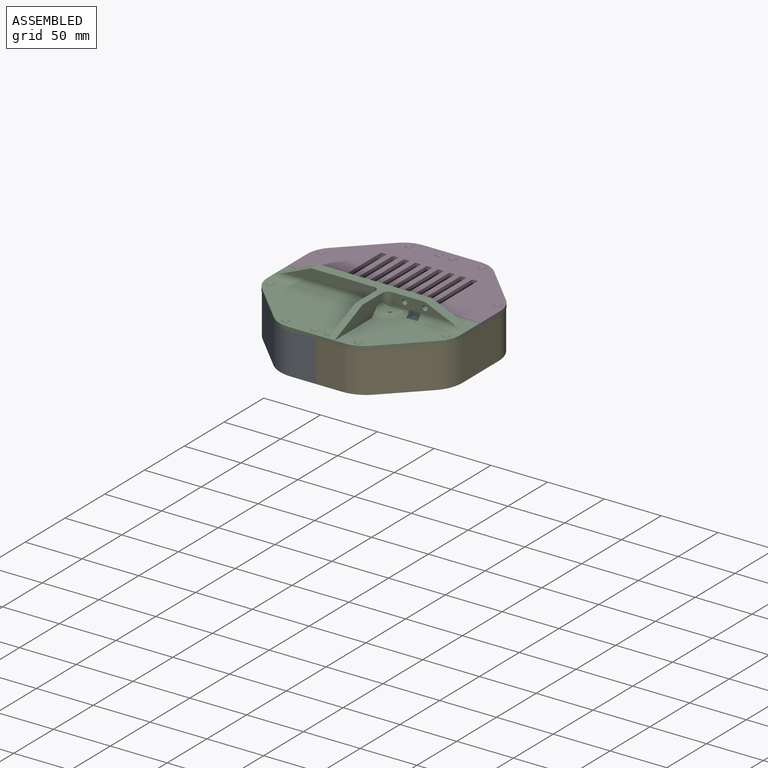
[diagram: assembled view]
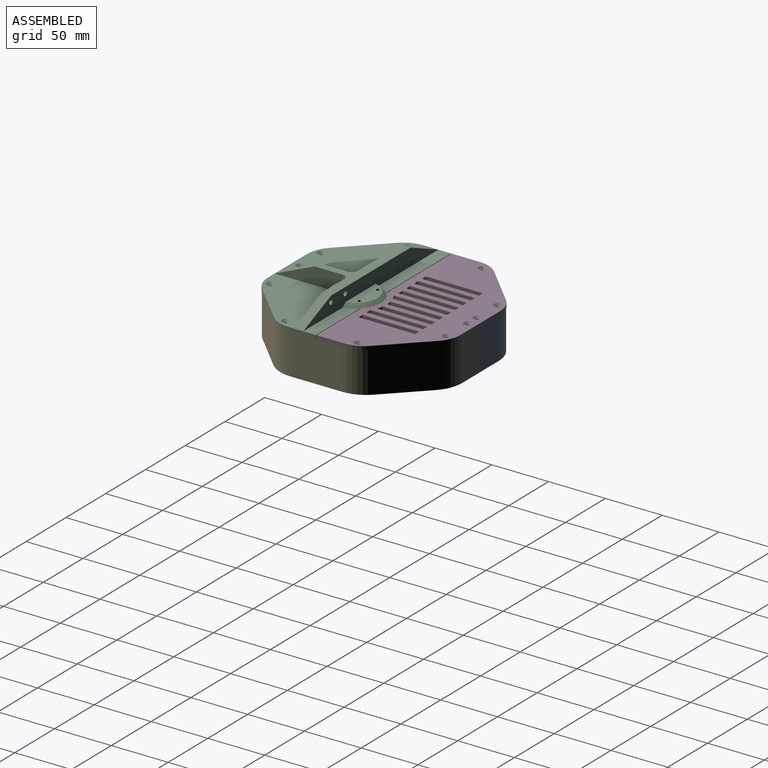
[diagram: assembled view, second angle]
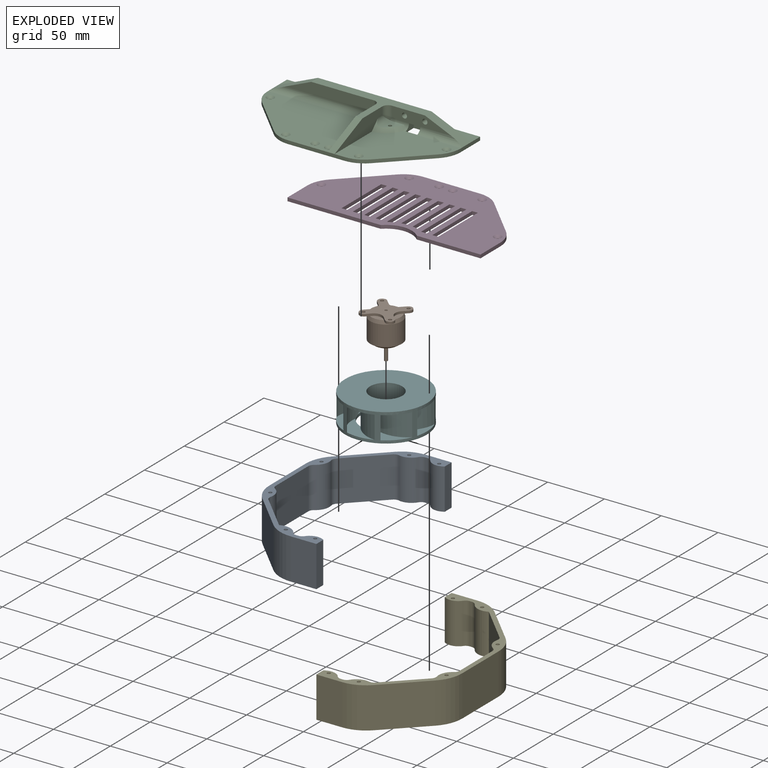
[diagram: exploded view]
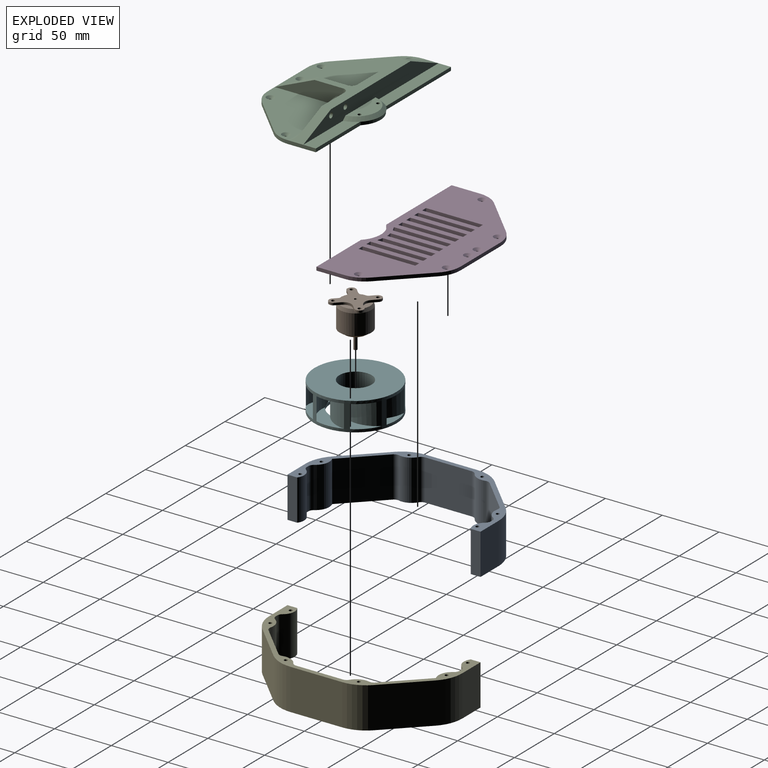
[diagram: exploded view, second angle]
ASSEMBLY  parts=6 mates=6
PART A: 39 faces, bbox 85x170x36 mm
  f0: plane 36x8.62mm, normal (-1,0,0), area 310.2mm2, adj f1,f22,f24,f25
  f1: cylinder r=10.5mm len=36mm, axis (0,0,-1), area 589.5mm2, adj f0,f24,f25,f30
  f2: plane 36x1.93mm, normal (0,-1,0), area 69.4mm2, adj f24,f25,f30,f32
  f3: cylinder r=12.2mm len=36mm, axis (0,0,-1), area 646.5mm2, adj f4,f24,f25,f32
  f4: plane 36x31.27mm, normal (-0.71,-0.71,0), area 1592.1mm2, adj f3,f24,f25,f33
  f5: cylinder r=12.2mm len=36mm, axis (0,0,-1), area 551.4mm2, adj f24,f25,f33,f34
  f6: plane 41.09x36mm, normal (-1,0,0), area 1479.4mm2, adj f24,f25,f34,f35
  f7: cylinder r=12.2mm len=36mm, axis (0,0,-1), area 551.4mm2, adj f24,f25,f35,f36
  f8: plane 36x29.06mm, normal (-0.71,0.71,0), area 1479.4mm2, adj f24,f25,f31,f36
  f9: cylinder r=12.2mm len=36mm, axis (0,0,-1), area 551.4mm2, adj f24,f25,f31,f37
  f10: plane 36x1.93mm, normal (0,1,0), area 69.4mm2, adj f24,f25,f37,f38
  f11: cylinder r=10.5mm len=36mm, axis (0,0,-1), area 589.5mm2, adj f12,f24,f25,f38
  f12: plane 36x8.62mm, normal (-1,0,0), area 310.2mm2, adj f11,f13,f24,f25
  f13: plane 36x22.78mm, normal (0,-1,0), area 820.1mm2, adj f12,f24,f25,f26
  f14: plane 36x32.22mm, normal (0.71,-0.71,0), area 1640.3mm2, adj f24,f25,f26,f27
  f15: plane 45.56x36mm, normal (1,0,0), area 1640.3mm2, adj f24,f25,f27,f28
  f16: plane 36x32.22mm, normal (0.71,0.71,0), area 1640.3mm2, adj f24,f25,f28,f29
  f17: cylinder r=1.5mm len=36mm, axis (0,0,-1), area 339.3mm2, adj f24,f25
  f18: cylinder r=1.5mm len=36mm, axis (0,0,-1), area 339.3mm2, adj f24,f25
  f19: cylinder r=1.5mm len=36mm, axis (0,0,-1), area 339.3mm2, adj f24,f25
  f20: cylinder r=1.5mm len=36mm, axis (0,0,-1), area 339.3mm2, adj f24,f25
  f21: cylinder r=1.5mm len=36mm, axis (0,0,-1), area 339.3mm2, adj f24,f25
  f22: plane 36x22.78mm, normal (0,1,0), area 820.1mm2, adj f0,f24,f25,f29
  f23: cylinder r=1.5mm len=36mm, axis (0,0,-1), area 339.3mm2, adj f24,f25
  f24: plane 170x85mm, normal (0,0,1), area 1500.2mm2, adj f0,f1,f2,f3,f4,f5,f6,f7
  f25: plane 170x85mm, normal (0,0,-1), area 1500.2mm2, adj f0,f1,f2,f3,f4,f5,f6,f7
  f26: cylinder r=30mm len=36mm, axis (0,0,-1), area 848.2mm2, adj f13,f14,f24,f25
  f27: cylinder r=30mm len=36mm, axis (0,0,-1), area 848.2mm2, adj f14,f15,f24,f25
  f28: cylinder r=30mm len=36mm, axis (0,0,-1), area 848.2mm2, adj f15,f16,f24,f25
  f29: cylinder r=30mm len=36mm, axis (0,0,-1), area 848.2mm2, adj f16,f22,f24,f25
  f30: cylinder r=5mm len=36mm, axis (0,0,-1), area 171.2mm2, adj f1,f2,f24,f25
  f31: cylinder r=5mm len=36mm, axis (0,0,-1), area 183.6mm2, adj f8,f9,f24,f25
  f32: cylinder r=5mm len=36mm, axis (0,0,-1), area 183.6mm2, adj f2,f3,f24,f25
  f33: cylinder r=5mm len=36mm, axis (0,0,-1), area 183.6mm2, adj f4,f5,f24,f25
  f34: cylinder r=5mm len=36mm, axis (0,0,-1), area 183.6mm2, adj f5,f6,f24,f25
  f35: cylinder r=5mm len=36mm, axis (0,0,-1), area 183.6mm2, adj f6,f7,f24,f25
  f36: cylinder r=5mm len=36mm, axis (0,0,-1), area 183.6mm2, adj f7,f8,f24,f25
  f37: cylinder r=5mm len=36mm, axis (0,0,-1), area 183.6mm2, adj f9,f10,f24,f25
  f38: cylinder r=5mm len=36mm, axis (0,0,-1), area 171.2mm2, adj f10,f11,f24,f25
PART B: 39 faces, bbox 40x40x40 mm
  f0: plane 7.55x7.5mm, normal (0,0,1), area 40.8mm2, adj f12,f15,f16,f28,f38
  f1: plane 7.55x7.5mm, normal (0,0,1), area 40.8mm2, adj f12,f19,f22,f27,f37
  f2: plane 7.55x7.5mm, normal (0,0,1), area 40.8mm2, adj f12,f20,f21,f25,f36
  f3: plane 7.55x7.5mm, normal (0,0,1), area 40.8mm2, adj f12,f14,f17,f24,f35
  f4: plane 40x40mm, normal (0,0,-1), area 529.2mm2, adj f14,f15,f16,f17,f19,f20,f21,f22
  f5: plane 3x3mm, normal (0,0,1), area 7.1mm2, adj f6
  f6: cylinder r=1.5mm len=12mm, axis (0,0,-1), area 113.1mm2, adj f5,f7
  f7: plane 9x9mm, normal (0,0,1), area 56.5mm2, adj f6,f8
  f8: cylinder r=4.5mm len=9mm, axis (0,0,-1), area 56.5mm2, adj f7,f9
  f9: plane 19x19mm, normal (0,0,1), area 219.9mm2, adj f8,f10
  f10: cone r=9.5mm half-angle=56.3deg, axis (0,0,-1), area 399.3mm2, adj f9,f11
  f11: cylinder r=14mm len=28mm, axis (0,0,-1), area 1583.4mm2, adj f10,f12
  f12: cone r=14mm half-angle=18.4deg, axis (0,0,1), area 268.2mm2, adj f0,f1,f2,f3,f11,f13,f18,f23
  f13: plane 8.7x8.7mm, normal (0,0,-1), area 40.1mm2, adj f12,f16,f17,f32
  f14: cylinder r=3.75mm len=7.5mm, axis (0,0,-1), area 23.6mm2, adj f3,f4,f17,f24
  f15: cylinder r=3.75mm len=7.5mm, axis (0,0,-1), area 23.6mm2, adj f0,f4,f16,f28
  f16: plane 5.5x2mm, normal (1,0,0), area 11mm2, adj f0,f4,f13,f15,f32
  f17: plane 5.5x2mm, normal (0,-1,0), area 11mm2, adj f3,f4,f13,f14,f32
  f18: plane 8.7x8.7mm, normal (0,0,-1), area 40.1mm2, adj f12,f21,f22,f30
  f19: cylinder r=3.75mm len=7.5mm, axis (0,0,-1), area 23.6mm2, adj f1,f4,f22,f27
  f20: cylinder r=3.75mm len=7.5mm, axis (0,0,-1), area 23.6mm2, adj f2,f4,f21,f25
  f21: plane 5.5x2mm, normal (-1,0,0), area 11mm2, adj f2,f4,f18,f20,f30
  f22: plane 5.5x2mm, normal (0,1,0), area 11mm2, adj f1,f4,f18,f19,f30
  f23: plane 8.7x8.7mm, normal (0,0,-1), area 40.1mm2, adj f12,f24,f25,f31
  f24: plane 5.5x2mm, normal (0,1,0), area 11mm2, adj f3,f4,f14,f23,f31
  f25: plane 5.5x2mm, normal (1,0,0), area 11mm2, adj f2,f4,f20,f23,f31
  f26: plane 8.7x8.7mm, normal (0,0,-1), area 40.1mm2, adj f12,f27,f28,f29
  f27: plane 5.5x2mm, normal (0,-1,0), area 11mm2, adj f1,f4,f19,f26,f29
  f28: plane 5.5x2mm, normal (-1,0,0), area 11mm2, adj f0,f4,f15,f26,f29
  f29: cylinder r=7mm len=7mm, axis (0,0,-1), area 22mm2, adj f4,f26,f27,f28
  f30: cylinder r=7mm len=7mm, axis (0,0,1), area 22mm2, adj f4,f18,f21,f22
  f31: cylinder r=7mm len=7mm, axis (0,0,1), area 22mm2, adj f4,f23,f24,f25
  f32: cylinder r=7mm len=7mm, axis (0,0,-1), area 22mm2, adj f4,f13,f16,f17
  f33: cylinder r=1.16mm len=2.32mm, axis (0,0,-1), area 14.6mm2, adj f4,f34
  f34: plane 2.32x2.32mm, normal (0,0,-1), area 4.2mm2, adj f33
  f35: cylinder r=1.5mm len=3mm, axis (0,0,-1), area 18.8mm2, adj f3,f4
  f36: cylinder r=1.5mm len=3mm, axis (0,0,-1), area 18.8mm2, adj f2,f4
  f37: cylinder r=1.5mm len=3mm, axis (0,0,-1), area 18.8mm2, adj f1,f4
  f38: cylinder r=1.5mm len=3mm, axis (0,0,-1), area 18.8mm2, adj f0,f4
PART C: 66 faces, bbox 170x91.5x18 mm
  f0: plane 24.35x3mm, normal (-1,0,0), area 73.1mm2, adj f1,f7,f24,f32,f65
  f1: plane 170x91mm, normal (0,0,-1), area 11475.2mm2, adj f0,f2,f9,f10,f11,f12,f13,f14
  f2: plane 10x8mm, normal (1,0,0), area 51.3mm2, adj f1,f3,f51,f54,f55,f58,f59
  f3: plane 10x6mm, normal (0,-1,0), area 60mm2, adj f2,f53,f55,f59
  f4: plane 60x15mm, normal (1,0,0), area 563.5mm2, adj f8,f28,f34,f39,f49,f50
  f5: plane 78.33x10mm, normal (0,-1,0), area 666.7mm2, adj f28,f32,f47,f52
  f6: plane 55.69x11.1mm, normal (0,0,1), area 578.8mm2, adj f17,f29,f38,f63
  f7: plane 81.69x11.1mm, normal (0,0,1), area 867.4mm2, adj f0,f29,f38,f65
  f8: plane 69x60mm, normal (0,0,1), area 2636.2mm2, adj f4,f10,f11,f26,f27,f39,f41,f42
  f9: plane 35.15x35.15mm, normal (-0.71,-0.71,0), area 149.1mm2, adj f1,f19,f24,f25
  f10: plane 49.71x3mm, normal (0,-1,0), area 149.1mm2, adj f1,f8,f19,f25,f26,f34
  f11: plane 35.15x35.15mm, normal (0.71,-0.71,0), area 149.1mm2, adj f1,f8,f26,f27
  f12: cylinder r=1.5mm len=3mm, axis (0,0,-1), area 9.4mm2, adj f1,f45
  f13: cylinder r=1.5mm len=3mm, axis (0,0,-1), area 9.4mm2, adj f1,f42
  f14: cylinder r=1.5mm len=3mm, axis (0,0,-1), area 9.4mm2, adj f1,f41
  f15: cylinder r=1.5mm len=3mm, axis (0,0,-1), area 9.4mm2, adj f1,f43
  f16: cylinder r=1.5mm len=3mm, axis (0,0,-1), area 9.4mm2, adj f1,f44
  f17: plane 24.35x3mm, normal (1,0,0), area 73.1mm2, adj f1,f6,f27,f33,f63
  f18: cylinder r=1.5mm len=3mm, axis (0,0,-1), area 9.4mm2, adj f1,f46
  f19: plane 95x60mm, normal (0,0,1), area 4119.2mm2, adj f9,f10,f24,f25,f31,f40,f43,f44
  f20: cylinder r=1.5mm len=6mm, axis (0,0,1), area 56.5mm2, adj f1,f35
  f21: cylinder r=1.5mm len=6mm, axis (0,0,1), area 56.5mm2, adj f1,f37
  f22: cylinder r=1.5mm len=6mm, axis (0,0,1), area 56.5mm2, adj f1,f35
  f23: cylinder r=1.5mm len=6mm, axis (0,0,1), area 56.5mm2, adj f1,f36
  f24: cylinder r=25mm len=17.68mm, axis (0,0,-1), area 58.9mm2, adj f0,f1,f9,f19,f32,f52
  f25: cylinder r=25mm len=17.68mm, axis (0,0,-1), area 58.9mm2, adj f1,f9,f10,f19
  f26: cylinder r=25mm len=17.68mm, axis (0,0,-1), area 58.9mm2, adj f1,f8,f10,f11
  f27: cylinder r=25mm len=17.68mm, axis (0,0,-1), area 58.9mm2, adj f1,f8,f11,f17,f33,f51
  f28: plane 100x38.4mm, normal (0,0,1), area 1030.7mm2, adj f4,f5,f29,f30,f31,f32,f33,f34
  f29: plane 170.05x15.05mm, normal (0,1,0), area 1870mm2, adj f6,f7,f28,f32,f33,f35,f38,f60
  f30: plane 52.33x10mm, normal (0,-1,0), area 374.9mm2, adj f28,f33,f49,f51,f55,f60,f61
  f31: plane 60x15mm, normal (-1,0,0), area 563.5mm2, adj f19,f28,f34,f40,f47,f48
  f32: plane 35x15mm, normal (-0.39,0,0.92), area 333.5mm2, adj f0,f5,f24,f28,f29,f52
  f33: plane 35x15mm, normal (0.39,0,0.92), area 333.5mm2, adj f17,f27,f28,f29,f30,f51
  f34: plane 35x15mm, normal (0,-0.39,0.92), area 228.5mm2, adj f4,f10,f28,f31
  f35: plane 37.99x15.1mm, normal (0,0,1), area 413mm2, adj f20,f22,f29,f38
  f36: plane 13.37x10.99mm, normal (0,0,1), area 90mm2, adj f23,f40,f48,f52
  f37: plane 13.37x10.99mm, normal (0,0,1), area 90mm2, adj f21,f39,f50,f51
  f38: cone r=19.5mm half-angle=45deg, axis (0,0,-1), area 242.2mm2, adj f6,f7,f29,f35,f62
  f39: cone r=19.5mm half-angle=45deg, axis (0,0,-1), area 110.5mm2, adj f4,f8,f37,f50,f51
  f40: cone r=19.5mm half-angle=45deg, axis (0,0,-1), area 110.5mm2, adj f19,f31,f36,f48,f52
  f41: cone r=1.5mm half-angle=45deg, axis (0,0,1), area 44.4mm2, adj f8,f14
  f42: cone r=1.5mm half-angle=45deg, axis (0,0,1), area 44.4mm2, adj f8,f13
  f43: cone r=1.5mm half-angle=45deg, axis (0,0,1), area 44.4mm2, adj f15,f19
  f44: cone r=1.5mm half-angle=45deg, axis (0,0,1), area 44.4mm2, adj f16,f19
  f45: cone r=1.5mm half-angle=45deg, axis (0,0,1), area 44.4mm2, adj f12,f19
  f46: cone r=1.5mm half-angle=45deg, axis (0,0,1), area 44.4mm2, adj f18,f19
  f47: cylinder r=5mm len=11.7mm, axis (0,0,-1), area 78.2mm2, adj f5,f28,f31,f48,f52
  f48: cylinder r=5mm len=13.84mm, axis (0,-1,0), area 87.2mm2, adj f31,f36,f40,f47,f52
  f49: cylinder r=5mm len=11.7mm, axis (0,0,1), area 78.2mm2, adj f4,f28,f30,f50,f51
  f50: cylinder r=5mm len=13.84mm, axis (0,1,0), area 87.2mm2, adj f4,f37,f39,f49,f51
  f51: cylinder r=5mm len=65.7mm, axis (1,0,0), area 330.6mm2, adj f2,f8,f27,f30,f33,f37,f39,f49
  f52: cylinder r=5mm len=91.7mm, axis (1,0,0), area 603.3mm2, adj f5,f19,f24,f32,f36,f40,f47,f48
  f53: plane 15x8mm, normal (-1,0,0), area 75.3mm2, adj f1,f3,f51,f54,f55,f57,f59
  f54: plane 10x3.1mm, normal (0,1,0), area 31mm2, adj f1,f2,f51,f53
  f55: plane 10x6mm, normal (0,0,-1), area 60mm2, adj f2,f3,f30,f53
  f56: plane 12x2mm, normal (1,0,0), area 24mm2, adj f1,f57,f58,f59
  f57: plane 33x2mm, normal (0,-1,0), area 66mm2, adj f1,f53,f56,f59
  f58: plane 23x2mm, normal (0,1,0), area 46mm2, adj f1,f2,f56,f59
  f59: plane 33x12mm, normal (0,0,-1), area 326mm2, adj f2,f3,f53,f56,f57,f58
  f60: cylinder r=2.25mm len=8.4mm, axis (0,-1,0), area 118.8mm2, adj f29,f30
  f61: cylinder r=2.25mm len=8.4mm, axis (0,-1,0), area 118.8mm2, adj f29,f30
  f62: plane 32.62x7mm, normal (0,0,-1), area 17.8mm2, adj f38,f63,f64,f65
  f63: plane 56.39x3mm, normal (0,1,0), area 169.2mm2, adj f1,f6,f17,f62,f64
  f64: cylinder r=22mm len=31.23mm, axis (0,0,1), area 104.1mm2, adj f1,f62,f63,f65
  f65: plane 82.39x3mm, normal (0,1,0), area 247.2mm2, adj f0,f1,f7,f62,f64
PART D: 64 faces, bbox 170x85x3 mm
  f0: plane 82.18x3mm, normal (0,-1,0), area 246.5mm2, adj f1,f2,f13,f53
  f1: plane 170x85mm, normal (0,0,1), area 9335mm2, adj f0,f3,f4,f5,f6,f7,f13,f15
  f2: plane 170x85mm, normal (0,0,-1), area 9523.5mm2, adj f0,f3,f4,f5,f6,f7,f8,f9
  f3: plane 56.18x3mm, normal (0,-1,0), area 168.5mm2, adj f1,f2,f4,f53
  f4: plane 24.85x3mm, normal (1,0,0), area 74.6mm2, adj f1,f2,f3,f51
  f5: plane 35.15x35.15mm, normal (0.71,0.71,0), area 149.1mm2, adj f1,f2,f51,f52
  f6: plane 49.71x3mm, normal (0,1,0), area 149.1mm2, adj f1,f2,f49,f52
  f7: plane 35.15x35.15mm, normal (-0.71,0.71,0), area 149.1mm2, adj f1,f2,f49,f50
  f8: cylinder r=1.5mm len=3mm, axis (0,0,-1), area 9.4mm2, adj f2,f59
  f9: cylinder r=1.5mm len=3mm, axis (0,0,-1), area 9.4mm2, adj f2,f58
  f10: cylinder r=1.5mm len=3mm, axis (0,0,-1), area 9.4mm2, adj f2,f55
  f11: cylinder r=1.5mm len=3mm, axis (0,0,-1), area 9.4mm2, adj f2,f57
  f12: cylinder r=1.5mm len=3mm, axis (0,0,-1), area 9.4mm2, adj f2,f56
  f13: plane 24.85x3mm, normal (-1,0,0), area 74.6mm2, adj f0,f1,f2,f50
  f14: cylinder r=1.5mm len=3mm, axis (0,0,-1), area 9.4mm2, adj f2,f54
  f15: plane 5x3mm, normal (0,-1,0), area 15mm2, adj f1,f2,f16,f18
  f16: plane 50x3mm, normal (1,0,0), area 150mm2, adj f1,f2,f15,f17
  f17: plane 5x3mm, normal (0,1,0), area 15mm2, adj f1,f2,f16,f18
  f18: plane 50x3mm, normal (-1,0,0), area 150mm2, adj f1,f2,f15,f17
  f19: plane 50x3mm, normal (-1,0,0), area 150mm2, adj f1,f2,f20,f22
  f20: plane 5x3mm, normal (0,-1,0), area 15mm2, adj f1,f2,f19,f21
  f21: plane 49.96x3mm, normal (1,0,0), area 149.9mm2, adj f1,f2,f20,f63
  f22: plane 4.93x3mm, normal (0,1,0), area 14.8mm2, adj f1,f2,f19,f63
  f23: plane 47.52x3mm, normal (-1,0,0), area 142.6mm2, adj f1,f2,f24,f62
  f24: plane 5x3mm, normal (0,-1,0), area 15mm2, adj f1,f2,f23,f25
  f25: plane 46.2x3mm, normal (1,0,0), area 138.6mm2, adj f1,f2,f24,f62
  f26: plane 45.83x3mm, normal (-1,0,0), area 137.5mm2, adj f1,f2,f27,f61
  f27: plane 5x3mm, normal (0,-1,0), area 15mm2, adj f1,f2,f26,f28
  f28: plane 46.38x3mm, normal (1,0,0), area 139.1mm2, adj f1,f2,f27,f61
  f29: plane 3x0.93mm, normal (0,1,0), area 2.8mm2, adj f1,f2,f32,f60
  f30: plane 47.91x3mm, normal (-1,0,0), area 143.7mm2, adj f1,f2,f31,f60
  f31: plane 5x3mm, normal (0,-1,0), area 15mm2, adj f1,f2,f30,f32
  f32: plane 50x3mm, normal (1,0,0), area 150mm2, adj f1,f2,f29,f31
  f33: plane 50x3mm, normal (-1,0,0), area 150mm2, adj f1,f2,f34,f36
  f34: plane 5x3mm, normal (0,-1,0), area 15mm2, adj f1,f2,f33,f35
  f35: plane 50x3mm, normal (1,0,0), area 150mm2, adj f1,f2,f34,f36
  f36: plane 5x3mm, normal (0,1,0), area 15mm2, adj f1,f2,f33,f35
  f37: plane 50x3mm, normal (-1,0,0), area 150mm2, adj f1,f2,f38,f40
  f38: plane 5x3mm, normal (0,-1,0), area 15mm2, adj f1,f2,f37,f39
  f39: plane 50x3mm, normal (1,0,0), area 150mm2, adj f1,f2,f38,f40
  f40: plane 5x3mm, normal (0,1,0), area 15mm2, adj f1,f2,f37,f39
  f41: plane 50x3mm, normal (-1,0,0), area 150mm2, adj f1,f2,f42,f44
  f42: plane 5x3mm, normal (0,-1,0), area 15mm2, adj f1,f2,f41,f43
  f43: plane 50x3mm, normal (1,0,0), area 150mm2, adj f1,f2,f42,f44
  f44: plane 5x3mm, normal (0,1,0), area 15mm2, adj f1,f2,f41,f43
  f45: plane 50x3mm, normal (-1,0,0), area 150mm2, adj f1,f2,f46,f48
  f46: plane 5x3mm, normal (0,-1,0), area 15mm2, adj f1,f2,f45,f47
  f47: plane 50x3mm, normal (1,0,0), area 150mm2, adj f1,f2,f46,f48
  f48: plane 5x3mm, normal (0,1,0), area 15mm2, adj f1,f2,f45,f47
  f49: cylinder r=25mm len=17.68mm, axis (0,0,-1), area 58.9mm2, adj f1,f2,f6,f7
  f50: cylinder r=25mm len=17.68mm, axis (0,0,-1), area 58.9mm2, adj f1,f2,f7,f13
  f51: cylinder r=25mm len=17.68mm, axis (0,0,-1), area 58.9mm2, adj f1,f2,f4,f5
  f52: cylinder r=25mm len=17.68mm, axis (0,0,-1), area 58.9mm2, adj f1,f2,f5,f6
  f53: cylinder r=22.5mm len=31.64mm, axis (0,0,1), area 105.3mm2, adj f0,f1,f2,f3
  f54: cone r=1.5mm half-angle=45deg, axis (0,0,1), area 44.4mm2, adj f1,f14
  f55: cone r=1.5mm half-angle=45deg, axis (0,0,1), area 44.4mm2, adj f1,f10
  f56: cone r=1.5mm half-angle=45deg, axis (0,0,1), area 44.4mm2, adj f1,f12
  f57: cone r=1.5mm half-angle=45deg, axis (0,0,1), area 44.4mm2, adj f1,f11
  f58: cone r=1.5mm half-angle=45deg, axis (0,0,1), area 44.4mm2, adj f1,f9
  f59: cone r=1.5mm half-angle=45deg, axis (0,0,1), area 44.4mm2, adj f1,f8
  f60: cylinder r=27.5mm len=4.07mm, axis (0,0,1), area 13.7mm2, adj f1,f2,f29,f30
  f61: cylinder r=27.5mm len=5mm, axis (0,0,1), area 15.1mm2, adj f1,f2,f26,f28
  f62: cylinder r=27.5mm len=5mm, axis (0,0,1), area 15.5mm2, adj f1,f2,f23,f25
  f63: cylinder r=27.5mm len=3mm, axis (0,0,1), area 0.2mm2, adj f1,f2,f21,f22
PART E: same geometry as A
PART F: 62 faces, bbox 72x72x25 mm
  f0: cylinder r=25mm len=26.85mm, axis (0,0,-1), area 641.9mm2, adj f1,f2,f4,f7,f28,f30,f54
  f1: cone r=16.7mm half-angle=29.2deg, axis (0,0,1), area 31.1mm2, adj f0,f3,f15,f30
  f2: cylinder r=36mm len=72mm, axis (0,0,1), area 1826.8mm2, adj f0,f3,f5,f6,f7,f8,f9,f10
  f3: cylinder r=26.8mm len=25.03mm, axis (0,0,-1), area 653.3mm2, adj f1,f2,f5,f6,f16,f30,f61
  f4: cylinder r=16.7mm len=9.72mm, axis (0,0,-1), area 86.7mm2, adj f0,f28,f53,f54
  f5: plane 32.45x24.6mm, normal (0,0,-1), area 272.4mm2, adj f2,f3,f15,f33
  f6: plane 32.45x32.26mm, normal (0,0,1), area 337.8mm2, adj f2,f3,f16,f33
  f7: plane 38.31x17.46mm, normal (0,0,-1), area 272.4mm2, adj f0,f2,f15,f53
  f8: plane 38.31x17.46mm, normal (0,0,-1), area 272.4mm2, adj f2,f15,f35,f36
  f9: plane 32.45x24.6mm, normal (0,0,-1), area 272.4mm2, adj f2,f15,f38,f39
  f10: plane 38.31x17.46mm, normal (0,0,-1), area 272.4mm2, adj f2,f15,f41,f42
  f11: plane 32.45x24.6mm, normal (0,0,-1), area 272.4mm2, adj f2,f15,f44,f45
  f12: plane 38.31x17.46mm, normal (0,0,-1), area 272.4mm2, adj f2,f15,f47,f48
  f13: plane 32.45x24.6mm, normal (0,0,-1), area 272.4mm2, adj f2,f15,f50,f51
  f14: plane 72x72mm, normal (0,0,1), area 2551mm2, adj f2,f15
  f15: cylinder r=22mm len=44mm, axis (0,0,-1), area 345.6mm2, adj f1,f5,f7,f8,f9,f10,f11,f12
  f16: cylinder r=16.7mm len=8.66mm, axis (0,0,-1), area 86.7mm2, adj f3,f6,f33,f61
  f17: plane 32.45x32.26mm, normal (0,0,1), area 337.8mm2, adj f2,f18,f50,f51
  f18: cylinder r=16.7mm len=8.66mm, axis (0,0,-1), area 86.7mm2, adj f17,f50,f51,f55
  f19: plane 41.93x17.55mm, normal (0,0,1), area 337.8mm2, adj f2,f20,f47,f48
  f20: cylinder r=16.7mm len=9.72mm, axis (0,0,-1), area 86.7mm2, adj f19,f47,f48,f56
  f21: plane 32.45x32.26mm, normal (0,0,1), area 337.8mm2, adj f2,f22,f44,f45
  f22: cylinder r=16.7mm len=8.66mm, axis (0,0,-1), area 86.7mm2, adj f21,f44,f45,f57
  f23: plane 41.93x17.55mm, normal (0,0,1), area 337.8mm2, adj f2,f24,f41,f42
  f24: cylinder r=16.7mm len=9.72mm, axis (0,0,-1), area 86.7mm2, adj f23,f41,f42,f58
  f25: plane 32.45x32.26mm, normal (0,0,1), area 337.8mm2, adj f2,f27,f38,f39
  f26: plane 41.93x17.55mm, normal (0,0,1), area 337.8mm2, adj f2,f29,f35,f36
  f27: cylinder r=16.7mm len=8.66mm, axis (0,0,-1), area 86.7mm2, adj f25,f38,f39,f59
  f28: plane 41.93x17.55mm, normal (0,0,1), area 337.8mm2, adj f0,f2,f4,f53
  f29: cylinder r=16.7mm len=9.72mm, axis (0,0,-1), area 86.7mm2, adj f26,f35,f36,f60
  f30: plane 33.36x33.36mm, normal (0,0,1), area 93.2mm2, adj f0,f1,f3,f31,f33,f34,f35,f36
  f31: cylinder r=14.2mm len=28.4mm, axis (0,0,-1), area 1159.9mm2, adj f30,f32
  f32: plane 72x72mm, normal (0,0,-1), area 3438mm2, adj f2,f31
  f33: cylinder r=25mm len=33.46mm, axis (0,0,-1), area 641.9mm2, adj f2,f5,f6,f16,f30,f34,f61
  f34: cone r=16.7mm half-angle=29.2deg, axis (0,0,1), area 31.1mm2, adj f15,f30,f33,f35
  f35: cylinder r=26.8mm len=35.06mm, axis (0,0,-1), area 653.3mm2, adj f2,f8,f26,f29,f30,f34,f60
  f36: cylinder r=25mm len=26.85mm, axis (0,0,-1), area 641.9mm2, adj f2,f8,f26,f29,f30,f37,f60
  f37: cone r=16.7mm half-angle=29.2deg, axis (0,0,1), area 31.1mm2, adj f15,f30,f36,f38
  f38: cylinder r=26.8mm len=25.03mm, axis (0,0,-1), area 653.3mm2, adj f2,f9,f25,f27,f30,f37,f59
  f39: cylinder r=25mm len=33.46mm, axis (0,0,-1), area 641.9mm2, adj f2,f9,f25,f27,f30,f40,f59
  f40: cone r=16.7mm half-angle=29.2deg, axis (0,0,1), area 31.1mm2, adj f15,f30,f39,f41
  f41: cylinder r=26.8mm len=35.06mm, axis (0,0,-1), area 653.3mm2, adj f2,f10,f23,f24,f30,f40,f58
  f42: cylinder r=25mm len=26.85mm, axis (0,0,-1), area 641.9mm2, adj f2,f10,f23,f24,f30,f43,f58
  f43: cone r=16.7mm half-angle=29.2deg, axis (0,0,1), area 31.1mm2, adj f15,f30,f42,f44
  f44: cylinder r=26.8mm len=25.03mm, axis (0,0,-1), area 653.3mm2, adj f2,f11,f21,f22,f30,f43,f57
  f45: cylinder r=25mm len=33.46mm, axis (0,0,-1), area 641.9mm2, adj f2,f11,f21,f22,f30,f46,f57
  f46: cone r=16.7mm half-angle=29.2deg, axis (0,0,1), area 31.1mm2, adj f15,f30,f45,f47
  f47: cylinder r=26.8mm len=35.06mm, axis (0,0,-1), area 653.3mm2, adj f2,f12,f19,f20,f30,f46,f56
  f48: cylinder r=25mm len=26.85mm, axis (0,0,-1), area 641.9mm2, adj f2,f12,f19,f20,f30,f49,f56
  f49: cone r=16.7mm half-angle=29.2deg, axis (0,0,1), area 31.1mm2, adj f15,f30,f48,f50
  f50: cylinder r=26.8mm len=25.03mm, axis (0,0,-1), area 653.3mm2, adj f2,f13,f17,f18,f30,f49,f55
  f51: cylinder r=25mm len=33.46mm, axis (0,0,-1), area 641.9mm2, adj f2,f13,f17,f18,f30,f52,f55
  f52: cone r=16.7mm half-angle=29.2deg, axis (0,0,1), area 31.1mm2, adj f15,f30,f51,f53
  f53: cylinder r=26.8mm len=35.06mm, axis (0,0,-1), area 653.3mm2, adj f2,f4,f7,f28,f30,f52,f54
  f54: torus R=14.7mm, axis (0,0,-1), area 30.1mm2, adj f0,f4,f30,f53
  f55: torus R=14.7mm, axis (0,0,-1), area 30.1mm2, adj f18,f30,f50,f51
  f56: torus R=14.7mm, axis (0,0,-1), area 30.1mm2, adj f20,f30,f47,f48
  f57: torus R=14.7mm, axis (0,0,-1), area 30.1mm2, adj f22,f30,f44,f45
  f58: torus R=14.7mm, axis (0,0,-1), area 30.1mm2, adj f24,f30,f41,f42
  f59: torus R=14.7mm, axis (0,0,-1), area 30.1mm2, adj f27,f30,f38,f39
  f60: torus R=14.7mm, axis (0,0,-1), area 30.1mm2, adj f29,f30,f35,f36
  f61: torus R=14.7mm, axis (0,0,-1), area 30.1mm2, adj f3,f16,f30,f33
PLACE A rot(axis=(0,0,1),180deg) t=(0.61,0.55,-35.6)mm
PLACE B rot(axis=(0.92,-0.38,0),180deg) t=(13.61,-15.45,0.4)mm
PLACE C t=(0.61,0.55,0.4)mm fixed
PLACE D t=(0.61,0.55,0.4)mm
PLACE E t=(0.61,0.55,-35.6)mm
PLACE F rot(axis=(0.92,-0.38,0),180deg) t=(13.61,-15.45,-4.6)mm
MATE fastened E.f20 <-> C.f14  axis (0,0,1) through (78.22,-31.6,0.4)mm
MATE revolute F.f1 <-> B.f6  axis (0,0,1) through (13.61,-15.45,-4.6)mm
MATE fastened E.f19 <-> D.f8  axis (0,0,1) through (78.22,32.69,0.4)mm
MATE fastened A.f19 <-> C.f18  axis (0,0,1) through (-77,-31.6,0.4)mm
MATE revolute B.f38 <-> C.f22  axis (0,0,1) through (25.28,-3.78,0.4)mm
MATE revolute B.f37 <-> C.f20  axis (0,0,1) through (1.94,-3.78,0.4)mm
